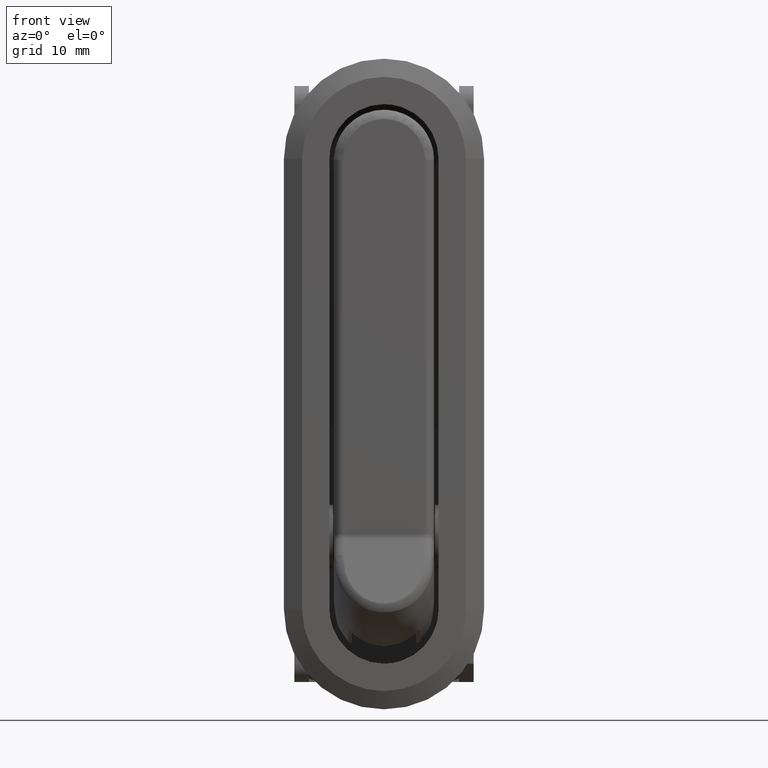
[diagram: clean part render]
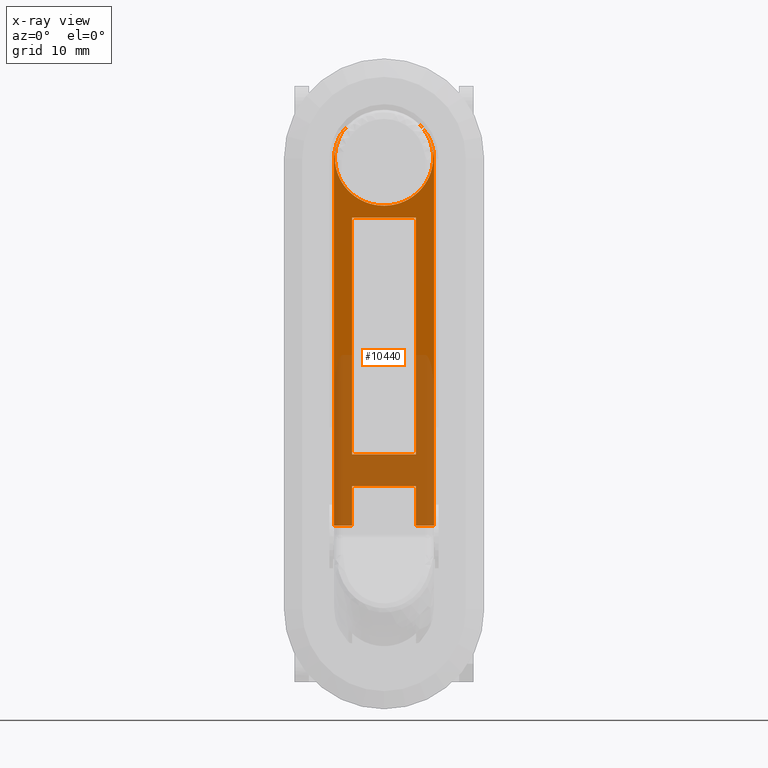
[diagram: x-ray — body ghosted, one internal face saturated and labeled with its STEP entity id]
A machine part, front view, then the same camera in x-ray: the body is ghosted and one INTERNAL B-rep face — a face not visible from any outside direction — is saturated and labeled: STEP entity #10440.
In plain terms, the highlighted face is a freeform B-spline surface patch.
Its self-contained STEP definition (entity closure, byte-faithful):
#9636=CARTESIAN_POINT('',(3.499999999999951,5.373750659362510,1.171667124357670));
#9637=VERTEX_POINT('',#9636);
#9678=CARTESIAN_POINT('',(3.500000000000000,4.430021473590880,5.499999999999890));
#9679=VERTEX_POINT('',#9678);
#9685=CARTESIAN_POINT('',(3.499999999999951,5.373750659362510,1.171667124357670));
#9686=CARTESIAN_POINT('',(3.500000000000000,4.430021473590880,5.499999999999890));
#9687=QUASI_UNIFORM_CURVE('',1,(#9685,#9686),.UNSPECIFIED.,.F.,.U.);
#9688=EDGE_CURVE('',#9637,#9679,#9687,.T.);
#9706=CARTESIAN_POINT('',(-3.500000000000000,4.430021473590880,5.499999999999890));
#9707=VERTEX_POINT('',#9706);
#9708=CARTESIAN_POINT('',(-3.500000000000000,4.430021473590880,5.499999999999890));
#9709=CARTESIAN_POINT('',(3.500000000000000,4.430021473590880,5.499999999999890));
#9710=QUASI_UNIFORM_CURVE('',1,(#9708,#9709),.UNSPECIFIED.,.F.,.U.);
#9711=EDGE_CURVE('',#9707,#9679,#9710,.T.);
#9819=CARTESIAN_POINT('',(3.499999999999951,3.666898062116545,8.999999999847150));
#9820=VERTEX_POINT('',#9819);
#9821=CARTESIAN_POINT('',(3.499999999999950,-2.002010510672265,34.999962398540049));
#9822=VERTEX_POINT('',#9821);
#9823=CARTESIAN_POINT('',(3.499999999999951,3.666898062116545,8.999999999847150));
#9824=CARTESIAN_POINT('',(3.499999999999950,-2.002010510672265,34.999962398540049));
#9825=QUASI_UNIFORM_CURVE('',1,(#9823,#9824),.UNSPECIFIED.,.F.,.U.);
#9826=EDGE_CURVE('',#9820,#9822,#9825,.T.);
#9885=CARTESIAN_POINT('',(-3.499999999999950,3.666898062116545,8.999999999847150));
#9886=VERTEX_POINT('',#9885);
#9887=CARTESIAN_POINT('',(-3.499999999999950,-2.002010510672265,34.999962398540049));
#9888=VERTEX_POINT('',#9887);
#9889=CARTESIAN_POINT('',(-3.499999999999950,3.666898062116545,8.999999999847150));
#9890=CARTESIAN_POINT('',(-3.499999999999950,-2.002010510672265,34.999962398540049));
#9891=QUASI_UNIFORM_CURVE('',1,(#9889,#9890),.UNSPECIFIED.,.F.,.U.);
#9892=EDGE_CURVE('',#9886,#9888,#9891,.T.);
#9952=CARTESIAN_POINT('',(-3.499999999999950,3.666898062116545,8.999999999847150));
#9953=CARTESIAN_POINT('',(3.499999999999951,3.666898062116545,8.999999999847150));
#9954=QUASI_UNIFORM_CURVE('',1,(#9952,#9953),.UNSPECIFIED.,.F.,.U.);
#9955=EDGE_CURVE('',#9886,#9820,#9954,.T.);
#10040=CARTESIAN_POINT('',(-3.499999999999950,-2.002010510672265,34.999962398540049));
#10041=CARTESIAN_POINT('',(3.499999999999950,-2.002010510672265,34.999962398540049));
#10042=QUASI_UNIFORM_CURVE('',1,(#10040,#10041),.UNSPECIFIED.,.F.,.U.);
#10043=EDGE_CURVE('',#9888,#9822,#10042,.T.);
#10072=CARTESIAN_POINT('',(-2.122286666654196,-4.500000000097200,46.456776697703802));
#10073=VERTEX_POINT('',#10072);
#10074=CARTESIAN_POINT('',(2.122286666665449,-4.500000000031590,46.456776697701599));
#10075=VERTEX_POINT('',#10074);
#10086=CARTESIAN_POINT('',(-0.000000678555431,-2.295070325973366,36.344056077342877));
#10087=VERTEX_POINT('',#10086);
#10088=CARTESIAN_POINT('',(2.122286666665449,-4.500000000031590,46.456776697701599));
#10089=CARTESIAN_POINT('',(2.546388579290597,-4.461354208002757,46.279531090945227));
#10090=CARTESIAN_POINT('',(3.330817312363366,-4.362768305606871,45.827375314843621));
#10091=CARTESIAN_POINT('',(4.208370792659689,-4.176335524105103,44.972317370832883));
#10092=CARTESIAN_POINT('',(4.836057239686116,-3.969036304105159,44.021557298377367));
#10093=CARTESIAN_POINT('',(5.197218743623250,-3.773631755887548,43.125351116696613));
#10094=CARTESIAN_POINT('',(5.382352663419678,-3.572163929103393,42.201336228499933));
#10095=CARTESIAN_POINT('',(5.414208969610281,-3.366813437204717,41.259513830147867));
#10096=CARTESIAN_POINT('',(5.251524551467777,-3.151342972353524,40.271277044813630));
#10097=CARTESIAN_POINT('',(4.920775133806087,-2.962616651385639,39.405699978972081));
#10098=CARTESIAN_POINT('',(4.486500618375158,-2.798116806006429,38.651235563173273));
#10099=CARTESIAN_POINT('',(3.901280856813708,-2.639874737224866,37.925471902404333));
#10100=CARTESIAN_POINT('',(3.018499522967387,-2.479630743877915,37.190526586513563));
#10101=CARTESIAN_POINT('',(1.985635899096334,-2.366253647854648,36.670532270897283));
#10102=CARTESIAN_POINT('',(0.941718591176714,-2.306659132936568,36.397207145394390));
#10103=CARTESIAN_POINT('',(0.307496606270357,-2.295065012562258,36.344031707841502));
#10104=CARTESIAN_POINT('',(-0.000000678555431,-2.295070325973366,36.344056077342877));
#10105=B_SPLINE_CURVE_WITH_KNOTS('',3,(#10088,#10089,#10090,#10091,#10092,#10093,#10094,#10095,#10096,#10097,#10098,#10099,#10100,#10101,#10102,#10103,#10104),.UNSPECIFIED.,.F.,.U.,(4,1,1,1,1,1,1,1,1,1,1,1,1,1,4),(0.000000192224306,1.383789972034577,2.709935027916092,3.690143851465480,4.843332274637492,5.650540506858917,6.573077463376427,7.726194027383200,8.706415707545030,9.398319032833312,10.378515364010930,11.531703570923471,12.857859152029389,13.838075996698739,14.760569382237600),.UNSPECIFIED.);
#10106=EDGE_CURVE('',#10075,#10087,#10105,.T.);
#10108=CARTESIAN_POINT('',(-0.000000678555431,-2.295070325973366,36.344056077342877));
#10109=CARTESIAN_POINT('',(-0.345945837894775,-2.295062601788849,36.344020650987403));
#10110=CARTESIAN_POINT('',(-1.076272452606796,-2.310086564512166,36.412926765863702));
#10111=CARTESIAN_POINT('',(-2.073636270493508,-2.375659111079661,36.713669620072679));
#10112=CARTESIAN_POINT('',(-2.923791003305910,-2.472699501865963,37.158737039775417));
#10113=CARTESIAN_POINT('',(-3.720380514697601,-2.602271907753158,37.753009753333423));
#10114=CARTESIAN_POINT('',(-4.362827522655648,-2.756408281436127,38.459942995984122));
#10115=CARTESIAN_POINT('',(-4.921730468794512,-2.957900167229449,39.384068228685258));
#10116=CARTESIAN_POINT('',(-5.237030941777655,-3.143903148807739,40.237154932215851));
#10117=CARTESIAN_POINT('',(-5.410904536687580,-3.366578099088924,41.258434471325472));
#10118=CARTESIAN_POINT('',(-5.395530359588149,-3.560191916106384,42.146427618125998));
#10119=CARTESIAN_POINT('',(-5.212908233213813,-3.753319141200465,43.032189052874308));
#10120=CARTESIAN_POINT('',(-4.927701219253335,-3.923454183248003,43.812498814353347));
#10121=CARTESIAN_POINT('',(-4.514075726530958,-4.081437950736915,44.537077798473597));
#10122=CARTESIAN_POINT('',(-4.000155794905747,-4.219857840215050,45.171928735995643));
#10123=CARTESIAN_POINT('',(-3.261962677619741,-4.370150269812261,45.861232059348332));
#10124=CARTESIAN_POINT('',(-2.599439098278438,-4.456533773723217,46.257422582670181));
#10125=CARTESIAN_POINT('',(-2.122286666654196,-4.500000000097200,46.456776697703802));
#10126=B_SPLINE_CURVE_WITH_KNOTS('',3,(#10108,#10109,#10110,#10111,#10112,#10113,#10114,#10115,#10116,#10117,#10118,#10119,#10120,#10121,#10122,#10123,#10124,#10125),.UNSPECIFIED.,.F.,.U.,(4,1,1,1,1,1,1,1,1,1,1,1,1,1,1,4),(0.000000192322039,1.037838257310094,2.191000010024752,3.113555695671236,3.920778793242029,5.189288261998309,5.996484634297879,7.207340751069290,7.956846269541824,9.167665673445704,9.917251755086017,10.724471080302539,11.704680862072760,12.454239205611961,13.203805316804720,14.760568025129110),.UNSPECIFIED.);
#10127=EDGE_CURVE('',#10087,#10073,#10126,.T.);
#10148=CARTESIAN_POINT('',(5.499999999997169,5.373750659362520,1.171667124357674));
#10149=VERTEX_POINT('',#10148);
#10150=CARTESIAN_POINT('',(5.499999999997169,5.373750659362520,1.171667124357674));
#10151=CARTESIAN_POINT('',(3.499999999999951,5.373750659362510,1.171667124357670));
#10152=QUASI_UNIFORM_CURVE('',1,(#10150,#10151),.UNSPECIFIED.,.F.,.U.);
#10153=EDGE_CURVE('',#10149,#9637,#10152,.T.);
#10190=CARTESIAN_POINT('',(-5.500000000000759,-3.393679993782815,41.382734984777500));
#10191=VERTEX_POINT('',#10190);
#10199=CARTESIAN_POINT('',(5.499999999997169,-3.393679993785195,41.382734984788399));
#10200=VERTEX_POINT('',#10199);
#10206=CARTESIAN_POINT('',(2.122286666665449,-4.500000000031590,46.456776697701599));
#10207=CARTESIAN_POINT('',(5.499999999998794,-4.191965377262290,45.044002349984218));
#10208=CARTESIAN_POINT('',(5.500000000006081,-3.393679993785203,41.382734984788399));
#10216=(BOUNDED_CURVE()B_SPLINE_CURVE(2,(#10206,#10207,#10208),.UNSPECIFIED.,.F.,.U.)CURVE()GEOMETRIC_REPRESENTATION_ITEM()QUASI_UNIFORM_CURVE()RATIONAL_B_SPLINE_CURVE((1.0,0.832427265002117,1.0))REPRESENTATION_ITEM(''));
#10217=EDGE_CURVE('',#10075,#10200,#10216,.T.);
#10220=CARTESIAN_POINT('',(-5.500000000000759,-3.393679993782815,41.382734984777500));
#10221=CARTESIAN_POINT('',(-5.499999999993918,-4.191965377268052,45.044002350010643));
#10222=CARTESIAN_POINT('',(-2.122286666654078,-4.500000000097217,46.456776697703802));
#10230=(BOUNDED_CURVE()B_SPLINE_CURVE(2,(#10220,#10221,#10222),.UNSPECIFIED.,.F.,.U.)CURVE()GEOMETRIC_REPRESENTATION_ITEM()QUASI_UNIFORM_CURVE()RATIONAL_B_SPLINE_CURVE((1.0,0.832427264999496,1.0))REPRESENTATION_ITEM(''));
#10231=EDGE_CURVE('',#10191,#10073,#10230,.T.);
#10246=CARTESIAN_POINT('',(5.499999999997169,5.373750659362520,1.171667124357674));
#10247=CARTESIAN_POINT('',(5.499999999997169,-3.393679993785195,41.382734984788399));
#10248=QUASI_UNIFORM_CURVE('',1,(#10246,#10247),.UNSPECIFIED.,.F.,.U.);
#10249=EDGE_CURVE('',#10149,#10200,#10248,.T.);
#10274=CARTESIAN_POINT('',(-5.500000000003060,5.373750659362520,1.171667124357674));
#10275=VERTEX_POINT('',#10274);
#10276=CARTESIAN_POINT('',(-5.500000000003060,5.373750659362520,1.171667124357674));
#10277=CARTESIAN_POINT('',(-5.500000000000759,-3.393679993782815,41.382734984777500));
#10278=QUASI_UNIFORM_CURVE('',1,(#10276,#10277),.UNSPECIFIED.,.F.,.U.);
#10279=EDGE_CURVE('',#10275,#10191,#10278,.T.);
#10387=CARTESIAN_POINT('',(-3.499999999999950,5.373750659362510,1.171667124357670));
#10388=VERTEX_POINT('',#10387);
#10404=CARTESIAN_POINT('',(-3.499999999999950,5.373750659362510,1.171667124357670));
#10405=CARTESIAN_POINT('',(-5.500000000003060,5.373750659362520,1.171667124357674));
#10406=QUASI_UNIFORM_CURVE('',1,(#10404,#10405),.UNSPECIFIED.,.F.,.U.);
#10407=EDGE_CURVE('',#10388,#10275,#10406,.T.);
#10412=CARTESIAN_POINT('',(6.049449978677047,5.866944485665290,-1.090324011059636));
#10413=CARTESIAN_POINT('',(6.049449978677047,-4.993194091234601,48.718769047762400));
#10414=CARTESIAN_POINT('',(-6.049450273725928,5.866944485665290,-1.090324011059636));
#10415=CARTESIAN_POINT('',(-6.049450273725928,-4.993194091234601,48.718769047762400));
#10416=B_SPLINE_SURFACE_WITH_KNOTS('',1,1,((#10412,#10414),(#10413,#10415)),.UNSPECIFIED.,.F.,.F.,.U.,(2,2),(2,2),(0.0,50.979293455793027),(0.0,12.098900252402981),.UNSPECIFIED.);
#10417=CARTESIAN_POINT('',(-3.499999999999950,5.373750659362510,1.171667124357670));
#10418=CARTESIAN_POINT('',(-3.500000000000000,4.430021473590880,5.499999999999890));
#10419=QUASI_UNIFORM_CURVE('',1,(#10417,#10418),.UNSPECIFIED.,.F.,.U.);
#10420=EDGE_CURVE('',#10388,#9707,#10419,.T.);
#10421=ORIENTED_EDGE('',*,*,#10420,.F.);
#10422=ORIENTED_EDGE('',*,*,#10407,.T.);
#10423=ORIENTED_EDGE('',*,*,#10279,.T.);
#10424=ORIENTED_EDGE('',*,*,#10231,.T.);
#10425=ORIENTED_EDGE('',*,*,#10127,.F.);
#10426=ORIENTED_EDGE('',*,*,#10106,.F.);
#10427=ORIENTED_EDGE('',*,*,#10217,.T.);
#10428=ORIENTED_EDGE('',*,*,#10249,.F.);
#10429=ORIENTED_EDGE('',*,*,#10153,.T.);
#10430=ORIENTED_EDGE('',*,*,#9688,.T.);
#10431=ORIENTED_EDGE('',*,*,#9711,.F.);
#10432=EDGE_LOOP('',(#10421,#10422,#10423,#10424,#10425,#10426,#10427,#10428,#10429,#10430,#10431));
#10433=FACE_OUTER_BOUND('',#10432,.T.);
#10434=ORIENTED_EDGE('',*,*,#9892,.F.);
#10435=ORIENTED_EDGE('',*,*,#9955,.T.);
#10436=ORIENTED_EDGE('',*,*,#9826,.T.);
#10437=ORIENTED_EDGE('',*,*,#10043,.F.);
#10438=EDGE_LOOP('',(#10434,#10435,#10436,#10437));
#10439=FACE_BOUND('',#10438,.T.);
#10440=ADVANCED_FACE('',(#10433,#10439),#10416,.F.);